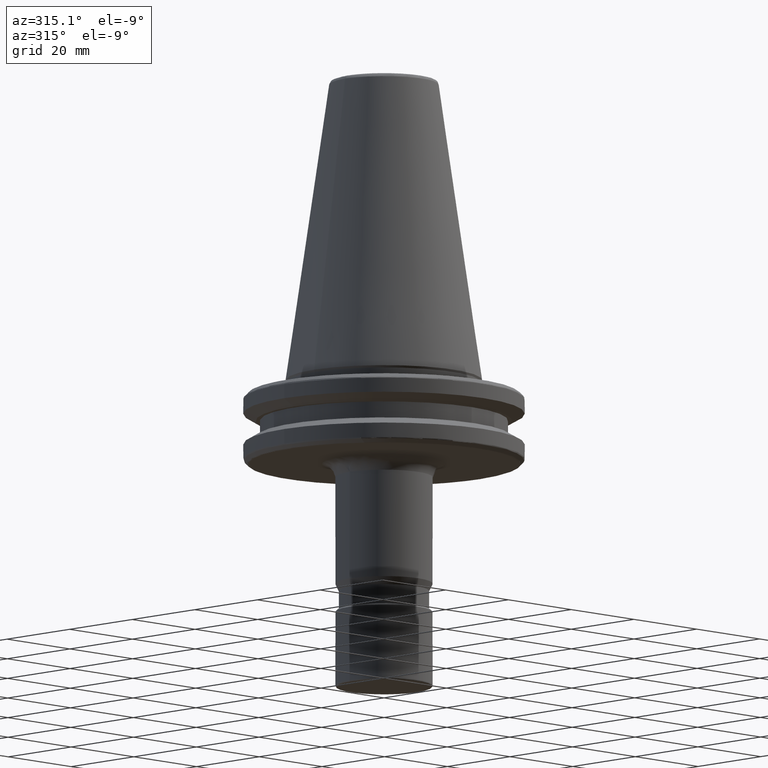
[diagram: clean part render]
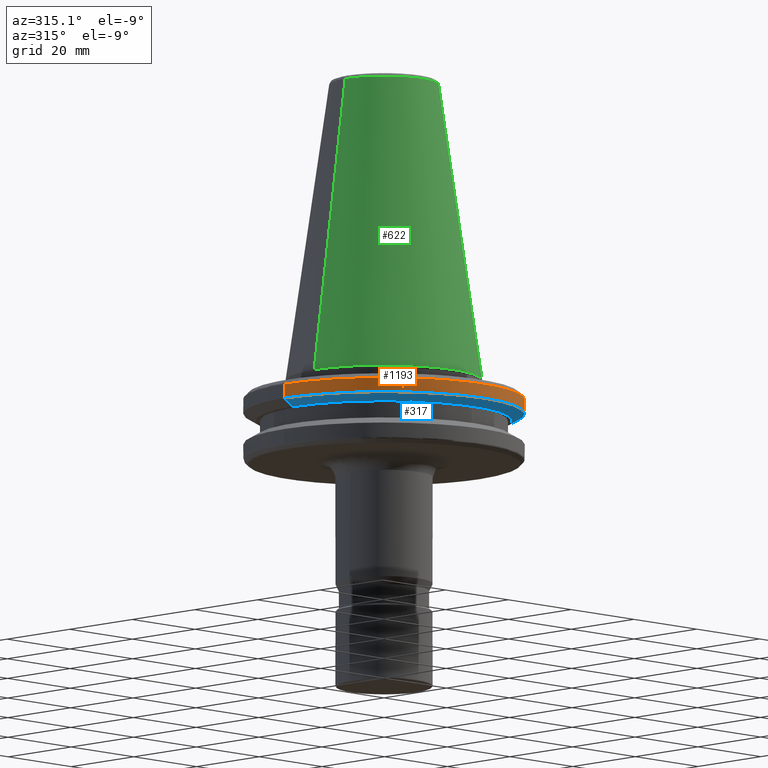
[diagram: same view with three faces highlighted in distinct colors, each labeled with its STEP entity id]
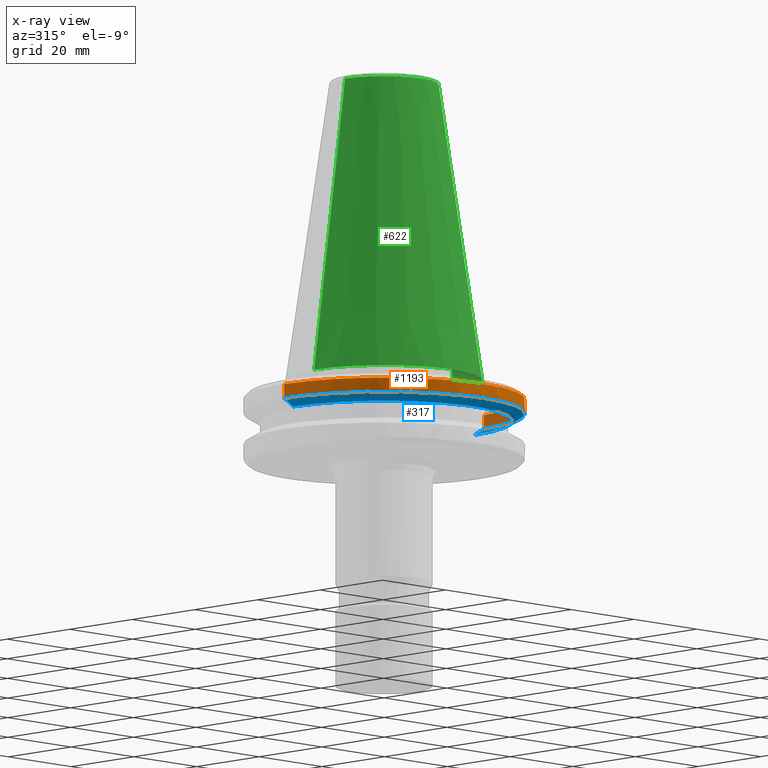
[diagram: x-ray of the same camera — body ghosted, the three highlighted faces saturated]
A machine part, auxiliary view with three faces highlighted in distinct colors.
The next image is the same camera in x-ray (body ghosted, the three faces saturated) — at least one of them is partly hidden behind the body in this view.
Their STEP definitions:

[orange] entity #1193 — the highlighted cylindrical surface (partial cylindrical patch) has radius 31.75 mm, axis along (0, -0, 1).
#12 = DIRECTION ( 'NONE',  ( 0.0000000000000000000, -0.0000000000000000000, 1.000000000000000000 ) ) ;
#81 = CARTESIAN_POINT ( 'NONE',  ( -8.600431038094541200, -30.56296919409610900, -4.365685425006482500 ) ) ;
#131 = LINE ( 'NONE', #1406, #3171 ) ;
#175 = AXIS2_PLACEMENT_3D ( 'NONE', #913, #1498, #1525 ) ;
#223 = DIRECTION ( 'NONE',  ( 0.0000000000000000000, 0.0000000000000000000, 1.000000000000000000 ) ) ;
#342 = ORIENTED_EDGE ( 'NONE', *, *, #1533, .F. ) ;
#358 = EDGE_CURVE ( 'NONE', #1915, #1037, #2883, .T. ) ;
#414 = AXIS2_PLACEMENT_3D ( 'NONE', #510, #2368, #775 ) ;
#426 = AXIS2_PLACEMENT_3D ( 'NONE', #2759, #765, #2576 ) ;
#510 = CARTESIAN_POINT ( 'NONE',  ( 0.0000000000000000000, 0.0000000000000000000, -4.365685425006482500 ) ) ;
#600 = ORIENTED_EDGE ( 'NONE', *, *, #3148, .F. ) ;
#612 = ORIENTED_EDGE ( 'NONE', *, *, #936, .T. ) ;
#633 = VERTEX_POINT ( 'NONE', #2440 ) ;
#699 = CARTESIAN_POINT ( 'NONE',  ( 0.0000000000000000000, 0.0000000000000000000, -4.365685425000001500 ) ) ;
#765 = DIRECTION ( 'NONE',  ( 0.0000000000000000000, -0.0000000000000000000, 1.000000000000000000 ) ) ;
#775 = DIRECTION ( 'NONE',  ( 1.000000000000000000, 0.0000000000000000000, 0.0000000000000000000 ) ) ;
#794 = CIRCLE ( 'NONE', #175, 31.75000000000000000 ) ;
#811 = VERTEX_POINT ( 'NONE', #1380 ) ;
#867 = VERTEX_POINT ( 'NONE', #1902 ) ;
#913 = CARTESIAN_POINT ( 'NONE',  ( 0.0000000000000000000, 0.0000000000000000000, -7.578163358000100700 ) ) ;
#921 = CIRCLE ( 'NONE', #2139, 31.75000000000000000 ) ;
#936 = EDGE_CURVE ( 'NONE', #3189, #811, #131, .T. ) ;
#949 = ORIENTED_EDGE ( 'NONE', *, *, #1351, .F. ) ;
#1031 = CARTESIAN_POINT ( 'NONE',  ( -31.75000000000000000, 3.888253587292846500E-015, -7.578163358000000300 ) ) ;
#1037 = VERTEX_POINT ( 'NONE', #3456 ) ;
#1193 = ADVANCED_FACE ( 'NONE', ( #1788 ), #1298, .T. ) ;
#1195 = DIRECTION ( 'NONE',  ( -0.0000000000000000000, -0.0000000000000000000, 1.000000000000000000 ) ) ;
#1254 = CIRCLE ( 'NONE', #414, 31.75000000000453300 ) ;
#1298 = CYLINDRICAL_SURFACE ( 'NONE', #426, 31.75000000000000000 ) ;
#1305 = CARTESIAN_POINT ( 'NONE',  ( 31.75000000000000000, 0.0000000000000000000, -7.578163358000100700 ) ) ;
#1351 = EDGE_CURVE ( 'NONE', #2076, #867, #1376, .T. ) ;
#1376 = CIRCLE ( 'NONE', #2027, 31.75000000000453300 ) ;
#1380 = CARTESIAN_POINT ( 'NONE',  ( 31.75000000000453300, -2.850947702612274100E-009, -4.365685425006481600 ) ) ;
#1406 = CARTESIAN_POINT ( 'NONE',  ( 31.75000000000000000, 0.0000000000000000000, -7.578163358000000300 ) ) ;
#1407 = LINE ( 'NONE', #1031, #1451 ) ;
#1451 = VECTOR ( 'NONE', #12, 1000.000000000000000 ) ;
#1476 = DIRECTION ( 'NONE',  ( 0.0000000000000000000, 0.0000000000000000000, 1.000000000000000000 ) ) ;
#1498 = DIRECTION ( 'NONE',  ( 0.0000000000000000000, 0.0000000000000000000, 1.000000000000000000 ) ) ;
#1506 = VERTEX_POINT ( 'NONE', #2889 ) ;
#1525 = DIRECTION ( 'NONE',  ( 1.000000000000000000, 0.0000000000000000000, 3.168943672650545300E-015 ) ) ;
#1533 = EDGE_CURVE ( 'NONE', #867, #811, #921, .T. ) ;
#1588 = CIRCLE ( 'NONE', #1593, 31.75000000000000000 ) ;
#1593 = AXIS2_PLACEMENT_3D ( 'NONE', #699, #1476, #2294 ) ;
#1788 = FACE_OUTER_BOUND ( 'NONE', #3194, .T. ) ;
#1818 = CARTESIAN_POINT ( 'NONE',  ( 0.0000000000000000000, 0.0000000000000000000, -4.365685425000001500 ) ) ;
#1902 = CARTESIAN_POINT ( 'NONE',  ( 8.717907037519772500, -30.52966748730570900, -4.365685425006482500 ) ) ;
#1915 = VERTEX_POINT ( 'NONE', #3170 ) ;
#2027 = AXIS2_PLACEMENT_3D ( 'NONE', #3060, #1195, #3326 ) ;
#2036 = ORIENTED_EDGE ( 'NONE', *, *, #2354, .F. ) ;
#2076 = VERTEX_POINT ( 'NONE', #81 ) ;
#2079 = DIRECTION ( 'NONE',  ( 1.000000000000000000, 0.0000000000000000000, 5.463695987328526400E-017 ) ) ;
#2088 = ORIENTED_EDGE ( 'NONE', *, *, #3408, .T. ) ;
#2139 = AXIS2_PLACEMENT_3D ( 'NONE', #1818, #223, #2079 ) ;
#2289 = DIRECTION ( 'NONE',  ( 1.000000000000000000, 0.0000000000000000000, 5.463695987328526400E-017 ) ) ;
#2294 = DIRECTION ( 'NONE',  ( 1.000000000000000000, 0.0000000000000000000, 5.463695987328526400E-017 ) ) ;
#2354 = EDGE_CURVE ( 'NONE', #1506, #2076, #1588, .T. ) ;
#2368 = DIRECTION ( 'NONE',  ( -0.0000000000000000000, -0.0000000000000000000, 1.000000000000000000 ) ) ;
#2440 = CARTESIAN_POINT ( 'NONE',  ( -31.75000000000000000, 3.888253587292846500E-015, -7.578163358000100700 ) ) ;
#2576 = DIRECTION ( 'NONE',  ( 1.000000000000000000, 0.0000000000000000000, 0.0000000000000000000 ) ) ;
#2759 = CARTESIAN_POINT ( 'NONE',  ( 0.0000000000000000000, 0.0000000000000000000, -7.578163358000000300 ) ) ;
#2835 = AXIS2_PLACEMENT_3D ( 'NONE', #3365, #3242, #2289 ) ;
#2848 = ORIENTED_EDGE ( 'NONE', *, *, #358, .F. ) ;
#2850 = DIRECTION ( 'NONE',  ( 0.0000000000000000000, -0.0000000000000000000, 1.000000000000000000 ) ) ;
#2883 = CIRCLE ( 'NONE', #2835, 31.75000000000000000 ) ;
#2889 = CARTESIAN_POINT ( 'NONE',  ( -18.50000000000132200, -25.80334280670314600, -4.365685425006482500 ) ) ;
#3056 = EDGE_CURVE ( 'NONE', #633, #1915, #1407, .T. ) ;
#3060 = CARTESIAN_POINT ( 'NONE',  ( 0.0000000000000000000, 0.0000000000000000000, -4.365685425006482500 ) ) ;
#3148 = EDGE_CURVE ( 'NONE', #1037, #1506, #1254, .T. ) ;
#3170 = CARTESIAN_POINT ( 'NONE',  ( -31.75000000000000000, 3.888253587292846500E-015, -4.365685425000001500 ) ) ;
#3171 = VECTOR ( 'NONE', #2850, 1000.000000000000000 ) ;
#3189 = VERTEX_POINT ( 'NONE', #1305 ) ;
#3194 = EDGE_LOOP ( 'NONE', ( #3283, #2088, #612, #342, #949, #2036, #600, #2848 ) ) ;
#3242 = DIRECTION ( 'NONE',  ( 0.0000000000000000000, 0.0000000000000000000, 1.000000000000000000 ) ) ;
#3283 = ORIENTED_EDGE ( 'NONE', *, *, #3056, .F. ) ;
#3326 = DIRECTION ( 'NONE',  ( 1.000000000000000000, 0.0000000000000000000, 0.0000000000000000000 ) ) ;
#3365 = CARTESIAN_POINT ( 'NONE',  ( 0.0000000000000000000, 0.0000000000000000000, -4.365685425000001500 ) ) ;
#3408 = EDGE_CURVE ( 'NONE', #633, #3189, #794, .T. ) ;
#3456 = CARTESIAN_POINT ( 'NONE',  ( -25.80334280670314600, -18.50000000000132200, -4.365685425006482500 ) ) ;

[blue] entity #317 — the highlighted conical surface has half-angle 60 deg.
#15 = DIRECTION ( 'NONE',  ( 0.0000000000000000000, -0.0000000000000000000, 1.000000000000000000 ) ) ;
#175 = AXIS2_PLACEMENT_3D ( 'NONE', #913, #1498, #1525 ) ;
#317 = ADVANCED_FACE ( 'NONE', ( #832 ), #666, .T. ) ;
#388 = ORIENTED_EDGE ( 'NONE', *, *, #3408, .F. ) ;
#392 = ORIENTED_EDGE ( 'NONE', *, *, #1095, .F. ) ;
#413 = LINE ( 'NONE', #1058, #1837 ) ;
#427 = DIRECTION ( 'NONE',  ( -0.0000000000000000000, 0.0000000000000000000, -1.000000000000000000 ) ) ;
#465 = CARTESIAN_POINT ( 'NONE',  ( 28.94089653400000400, 0.0000000000000000000, -9.199999999999995700 ) ) ;
#633 = VERTEX_POINT ( 'NONE', #2440 ) ;
#666 = CONICAL_SURFACE ( 'NONE', #2292, 28.94089653399999700, 1.047197551270450300 ) ;
#749 = ORIENTED_EDGE ( 'NONE', *, *, #3264, .F. ) ;
#794 = CIRCLE ( 'NONE', #175, 31.75000000000000000 ) ;
#832 = FACE_OUTER_BOUND ( 'NONE', #1409, .T. ) ;
#913 = CARTESIAN_POINT ( 'NONE',  ( 0.0000000000000000000, 0.0000000000000000000, -7.578163358000100700 ) ) ;
#1058 = CARTESIAN_POINT ( 'NONE',  ( 28.94089653399999700, 0.0000000000000000000, -9.199999999999999300 ) ) ;
#1095 = EDGE_CURVE ( 'NONE', #1524, #1350, #2544, .T. ) ;
#1127 = VECTOR ( 'NONE', #1534, 1000.000000000000100 ) ;
#1133 = LINE ( 'NONE', #3423, #1127 ) ;
#1134 = EDGE_CURVE ( 'NONE', #1524, #3189, #413, .T. ) ;
#1305 = CARTESIAN_POINT ( 'NONE',  ( 31.75000000000000000, 0.0000000000000000000, -7.578163358000100700 ) ) ;
#1350 = VERTEX_POINT ( 'NONE', #2251 ) ;
#1390 = CARTESIAN_POINT ( 'NONE',  ( 0.0000000000000000000, 0.0000000000000000000, -9.199999999999995700 ) ) ;
#1409 = EDGE_LOOP ( 'NONE', ( #749, #392, #1530, #388 ) ) ;
#1448 = DIRECTION ( 'NONE',  ( 0.8660254038213648400, 0.0000000000000000000, 0.4999999999360417200 ) ) ;
#1488 = DIRECTION ( 'NONE',  ( 1.000000000000000000, 0.0000000000000000000, 0.0000000000000000000 ) ) ;
#1498 = DIRECTION ( 'NONE',  ( 0.0000000000000000000, 0.0000000000000000000, 1.000000000000000000 ) ) ;
#1524 = VERTEX_POINT ( 'NONE', #465 ) ;
#1525 = DIRECTION ( 'NONE',  ( 1.000000000000000000, 0.0000000000000000000, 3.168943672650545300E-015 ) ) ;
#1530 = ORIENTED_EDGE ( 'NONE', *, *, #1134, .T. ) ;
#1534 = DIRECTION ( 'NONE',  ( -0.8660254038213648400, 1.060575238770128500E-016, 0.4999999999360417200 ) ) ;
#1568 = AXIS2_PLACEMENT_3D ( 'NONE', #1390, #427, #1488 ) ;
#1837 = VECTOR ( 'NONE', #1448, 1000.000000000000100 ) ;
#2251 = CARTESIAN_POINT ( 'NONE',  ( -28.94089653400000400, 3.716245608887315200E-015, -9.199999999999995700 ) ) ;
#2292 = AXIS2_PLACEMENT_3D ( 'NONE', #2706, #15, #3084 ) ;
#2440 = CARTESIAN_POINT ( 'NONE',  ( -31.75000000000000000, 3.888253587292846500E-015, -7.578163358000100700 ) ) ;
#2544 = CIRCLE ( 'NONE', #1568, 28.94089653400000400 ) ;
#2706 = CARTESIAN_POINT ( 'NONE',  ( 0.0000000000000000000, 0.0000000000000000000, -9.199999999999999300 ) ) ;
#3084 = DIRECTION ( 'NONE',  ( 1.000000000000000000, 0.0000000000000000000, 0.0000000000000000000 ) ) ;
#3189 = VERTEX_POINT ( 'NONE', #1305 ) ;
#3264 = EDGE_CURVE ( 'NONE', #1350, #633, #1133, .T. ) ;
#3408 = EDGE_CURVE ( 'NONE', #633, #3189, #794, .T. ) ;
#3423 = CARTESIAN_POINT ( 'NONE',  ( -28.94089653399999700, 3.544237630481782400E-015, -9.199999999999999300 ) ) ;

[green] entity #622 — the highlighted conical surface has half-angle 8.297 deg.
#124 = DIRECTION ( 'NONE',  ( 0.1443082272694599900, 1.767266086161729800E-017, -0.9895327864918603800 ) ) ;
#156 = VERTEX_POINT ( 'NONE', #1716 ) ;
#165 = VERTEX_POINT ( 'NONE', #1180 ) ;
#189 = DIRECTION ( 'NONE',  ( -1.000000000000000000, 0.0000000000000000000, 2.242930009368895400E-015 ) ) ;
#247 = CARTESIAN_POINT ( 'NONE',  ( 0.0000000000000000000, 0.0000000000000000000, 0.0000000000000000000 ) ) ;
#452 = CARTESIAN_POINT ( 'NONE',  ( 0.0000000000000000000, 0.0000000000000000000, 67.54430822699997300 ) ) ;
#514 = DIRECTION ( 'NONE',  ( 0.0000000000000000000, 0.0000000000000000000, 1.000000000000000000 ) ) ;
#555 = DIRECTION ( 'NONE',  ( 0.0000000000000000000, 0.0000000000000000000, -1.000000000000000000 ) ) ;
#622 = ADVANCED_FACE ( 'NONE', ( #2200 ), #2331, .T. ) ;
#718 = DIRECTION ( 'NONE',  ( -0.0000000000000000000, -0.0000000000000000000, 1.000000000000000000 ) ) ;
#793 = DIRECTION ( 'NONE',  ( -1.000000000000000000, 0.0000000000000000000, 0.0000000000000000000 ) ) ;
#801 = DIRECTION ( 'NONE',  ( -0.1443082272694599900, 0.0000000000000000000, -0.9895327864918603800 ) ) ;
#935 = CARTESIAN_POINT ( 'NONE',  ( 0.0000000000000000000, 0.0000000000000000000, 67.54430822700000200 ) ) ;
#1008 = ORIENTED_EDGE ( 'NONE', *, *, #3113, .T. ) ;
#1041 = CARTESIAN_POINT ( 'NONE',  ( 12.37469537596690300, -3.807138672675623000E-009, 67.54430822700852800 ) ) ;
#1069 = EDGE_LOOP ( 'NONE', ( #1913, #2662, #1008, #1674 ) ) ;
#1143 = EDGE_CURVE ( 'NONE', #3199, #165, #1213, .T. ) ;
#1180 = CARTESIAN_POINT ( 'NONE',  ( 22.22499999999999400, 2.721777511104992100E-015, 0.0000000000000000000 ) ) ;
#1208 = VECTOR ( 'NONE', #124, 1000.000000000000100 ) ;
#1213 = LINE ( 'NONE', #1975, #1208 ) ;
#1270 = EDGE_CURVE ( 'NONE', #156, #3199, #1454, .T. ) ;
#1293 = LINE ( 'NONE', #2083, #1299 ) ;
#1299 = VECTOR ( 'NONE', #801, 1000.000000000000100 ) ;
#1454 = CIRCLE ( 'NONE', #1500, 12.37469537600000200 ) ;
#1500 = AXIS2_PLACEMENT_3D ( 'NONE', #452, #718, #189 ) ;
#1674 = ORIENTED_EDGE ( 'NONE', *, *, #2875, .T. ) ;
#1716 = CARTESIAN_POINT ( 'NONE',  ( -12.37469537596881600, -1.111168798511305300E-009, 67.54430822699542600 ) ) ;
#1729 = AXIS2_PLACEMENT_3D ( 'NONE', #247, #514, #2659 ) ;
#1913 = ORIENTED_EDGE ( 'NONE', *, *, #1143, .F. ) ;
#1975 = CARTESIAN_POINT ( 'NONE',  ( 12.37469537600000200, 1.515463108264195400E-015, 67.54430822700000200 ) ) ;
#2047 = AXIS2_PLACEMENT_3D ( 'NONE', #935, #555, #793 ) ;
#2083 = CARTESIAN_POINT ( 'NONE',  ( -12.37469537600000200, 0.0000000000000000000, 67.54430822700000200 ) ) ;
#2200 = FACE_OUTER_BOUND ( 'NONE', #1069, .T. ) ;
#2331 = CONICAL_SURFACE ( 'NONE', #2047, 12.37469537600000200, 0.1448138465495948400 ) ;
#2391 = VERTEX_POINT ( 'NONE', #3319 ) ;
#2459 = CIRCLE ( 'NONE', #1729, 22.22499999999999800 ) ;
#2659 = DIRECTION ( 'NONE',  ( 1.000000000000000000, 0.0000000000000000000, 0.0000000000000000000 ) ) ;
#2662 = ORIENTED_EDGE ( 'NONE', *, *, #1270, .F. ) ;
#2875 = EDGE_CURVE ( 'NONE', #2391, #165, #2459, .T. ) ;
#3113 = EDGE_CURVE ( 'NONE', #156, #2391, #1293, .T. ) ;
#3199 = VERTEX_POINT ( 'NONE', #1041 ) ;
#3319 = CARTESIAN_POINT ( 'NONE',  ( -22.22499999999999400, 0.0000000000000000000, 0.0000000000000000000 ) ) ;